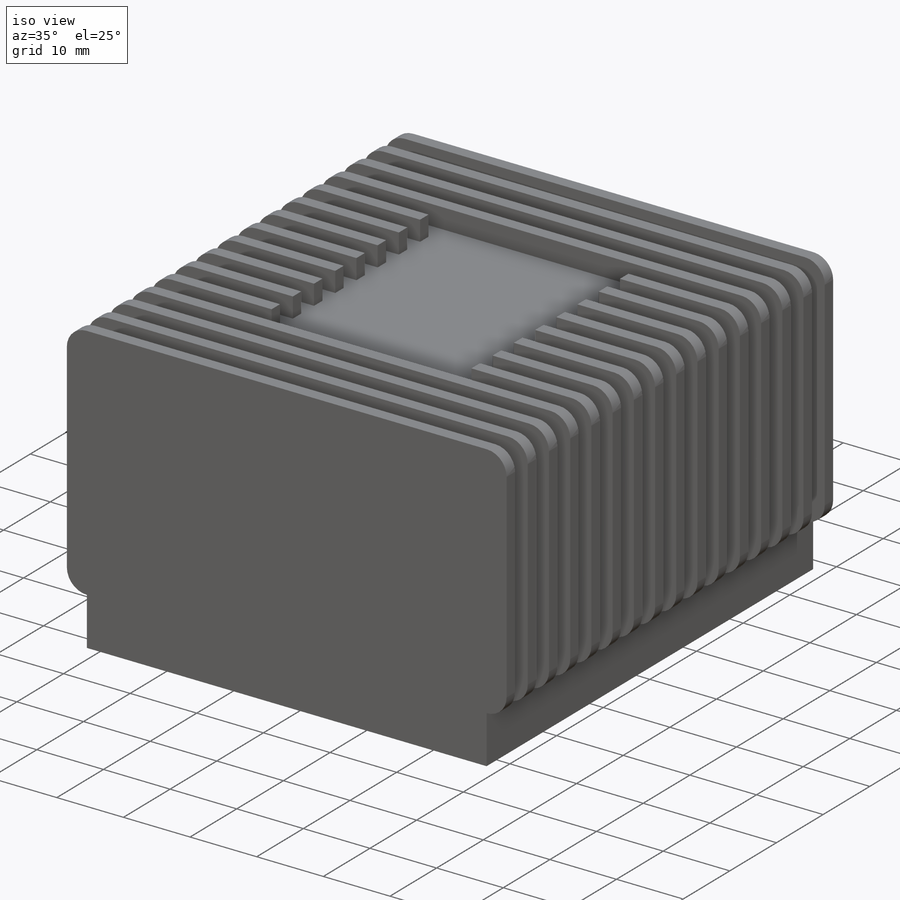
[diagram: iso view]
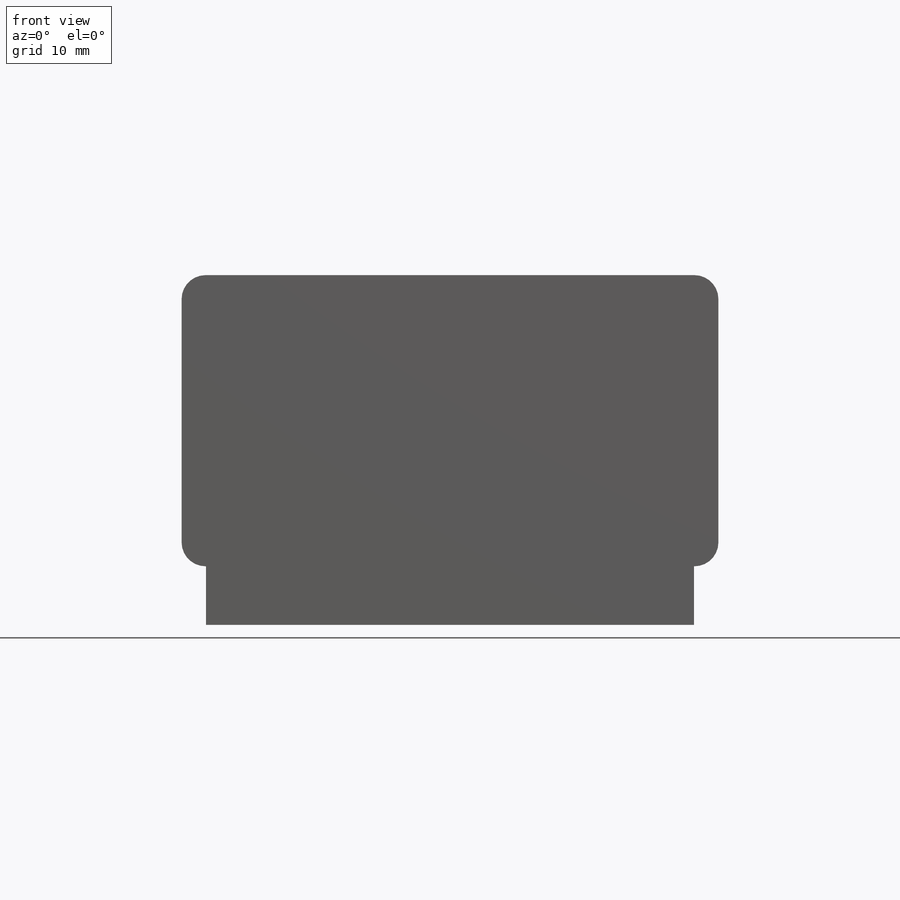
[diagram: front view]
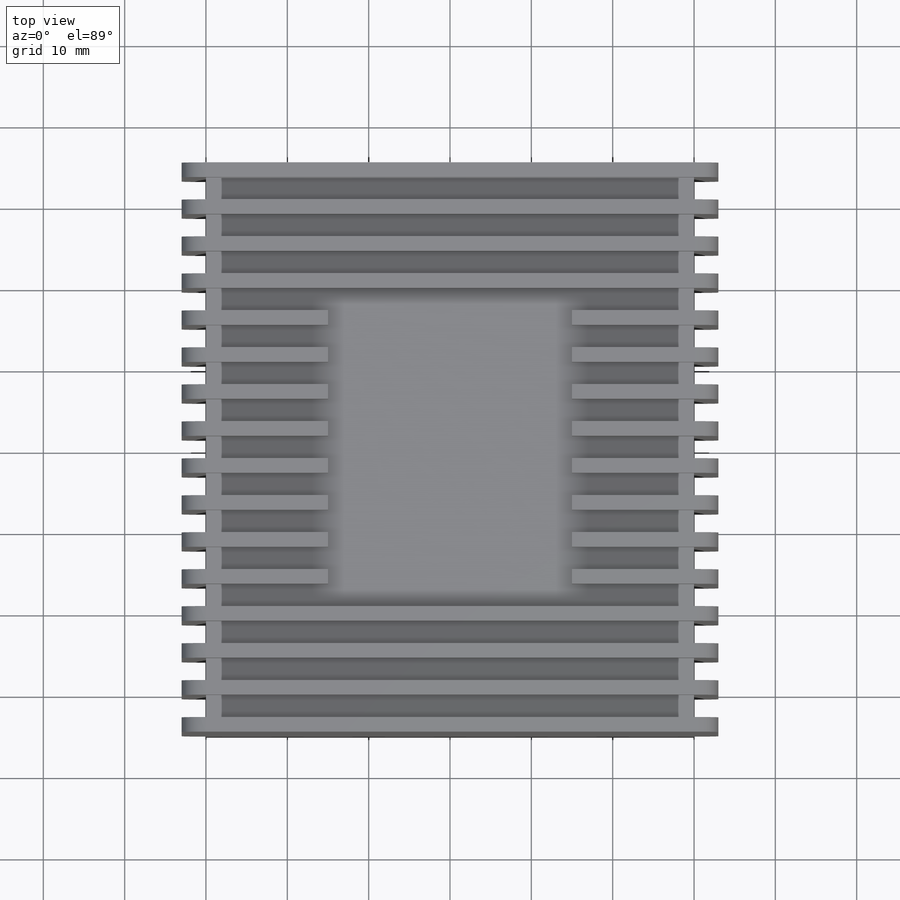
[diagram: top view]
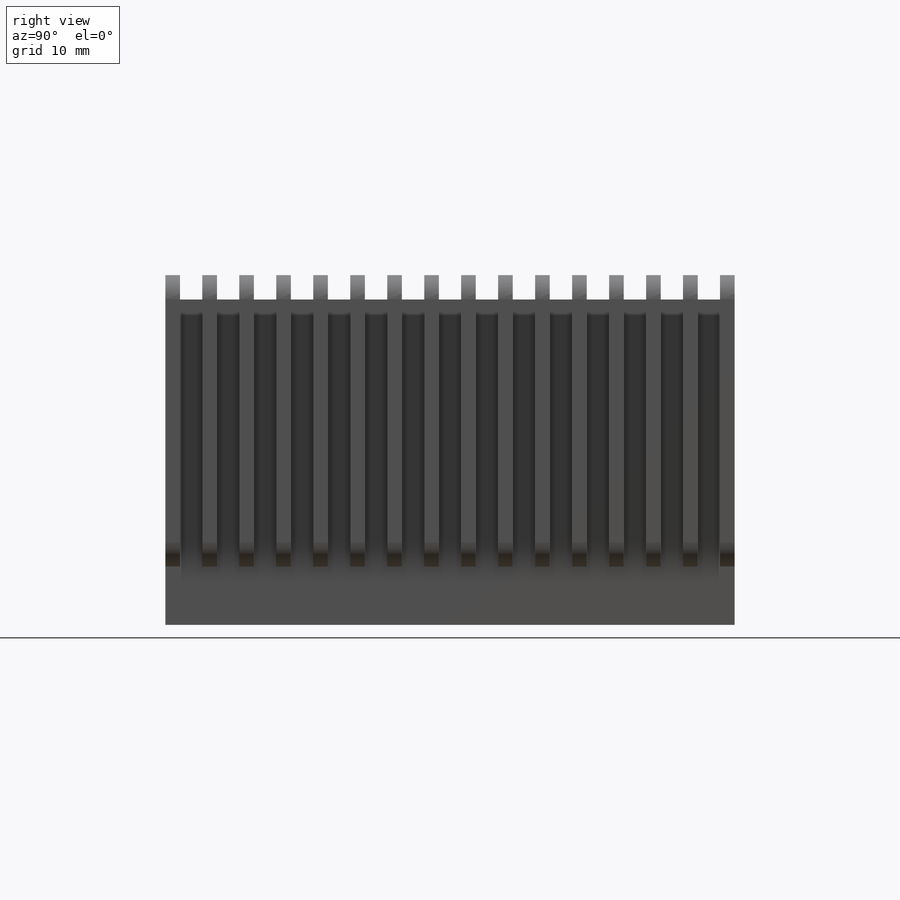
[diagram: right view]
SOLIDWORKS PART (.sldprt)
format: sldprt  version: not decoded by parser v0  size: 1,780,736 bytes
history: native  units: mm
features: sketch x12, fillet x12, extrude x6, plane x5, cut_extrude x4, mirror x3, material x1, pattern_linear x1, shell x1, move_body x1 + 1 further entry (+15 scaffold rows collapsed; 3 parser-record rows omitted)
feature tree (65):
  scaffold x15  (default folders/planes/origin — collapsed)
  material  "Material <not specified>"
  sketch  "Sketch1"  dims[D1=60.0mm D2=70.0mm]
  extrude  "Boss-Extrude1"  Depth=40mm
  sketch  "Sketch2"  dims[c1.D1=2.95mm c1.D2=2.95mm c1.D3=2.95mm c1.D4=2.95mm c2.D1=3.0mm c2.D5=4.0mm]
  extrude  "Boss-Extrude2"  Depth=1.8mm
  pattern_linear  "LPattern1"  Count1=14 Count2=1 Spacing1=5.246154mm Spacing2=50mm
  plane  "Plane1"  Offset=0mm
  sketch  "Sketch5"  dims[D1=34.4304mm D2=30.0mm]
  cut_extrude  "Cut-Extrude1"  Depth=16.251847mm
  shell  "Shell2"  Thickness=2mm
  fillet  "Fillet5"  Radius=2mm
  plane  "Plane2"
  sketch  "Sketch15"  dims[D1=~6.269231mm]
  cut_extrude  "Cut-Extrude6"  Depth=10.5mm GrooveHeight=2mm GrooveWidth=1mm GrooveDraftAngle=3deg Clearance=0mm Gap=0mm upGap=2mm LipHeight=2mm LipWidth=1mm LipDraftAngle=3deg
  parser-record x3  (decoder bookkeeping rows leaked as tree rows — omitted from the tree; the rows remain in map.json)
  sketch  "3DSketch1"  dims[BaseDepth=2.25mm TopDepth=2.0mm Width=4.0mm HookHeight=4.0mm Overhang=1.5mm BodyHeight=7.0mm Draft=3.0deg LipHeight=0.0mm HeightOffset=0.0mm WidthOffset=0.0mm Clearance=0.0mm Gap=0.0mm GapHeight=2.0mm]
  fillet  "Fillet6"  Radius=1mm
  fillet  "Fillet7"  Radius=1mm
  plane  "Plane3"
  mirror  "Mirror8"
  mirror  "Mirror9"
  fillet  "Fillet8"  Radius=1mm
  fillet  "Fillet9"  Radius=1mm
  sketch  "Sketch6"  dims[D1=2.0mm]
  extrude  "Boss-Extrude3"  Depth=10mm
  fillet  "Fillet10"  Radius=6mm
  sketch  "Sketch25"  dims[D1=~1.531053mm]
  extrude  "Boss-Extrude5"  Depth=10mm
  cut_extrude  "Cut-Extrude8"  [1 undecoded]
  sketch  "Sketch25<2>"  dims[D1=10.0mm]
  sketch  "Sketch19"  dims[c1.D1=~7.726102mm c1.D2=~29.530731mm c2.D1=~25.185781mm c2.D2=16.0mm]
  "Sketch-Pattern2"
  sketch  "Sketch22"  dims[D1=5.0mm D2=14.72mm D3=5.0mm]
  extrude  "Boss-Extrude4"  Depth=10mm
  plane  "Plane5"
  fillet  "Fillet12"  Radius=1mm
  fillet  "Fillet13"  Radius=1mm
  plane  "Plane6"
  extrude  "Boss-Extrude8"  [1 undecoded]
  sketch  "Sketch29"  dims[D1=3.0mm]
  mirror  "Mirror15"
  fillet  "Fillet22"  Radius=3mm
  fillet  "Fillet23"  Radius=3mm
  fillet  "Fillet24"  Radius=3mm
  fillet  "Fillet25"  Radius=3mm
  move_body  "Body-Move/Copy1"
  sketch  "Sketch30"  dims[D1=~8.397301mm]
  cut_extrude  "Cut-Extrude10"  Depth=3mm
decode coverage: 34 of 40 modeling features carry decoded parameters; 1 rows unclassified (native names shown)
note: ~ marks probable driven/reference dimensions
note: 2 parameter values undecoded
note: suppression state not decoded; provenance and decode notes live in map.json
